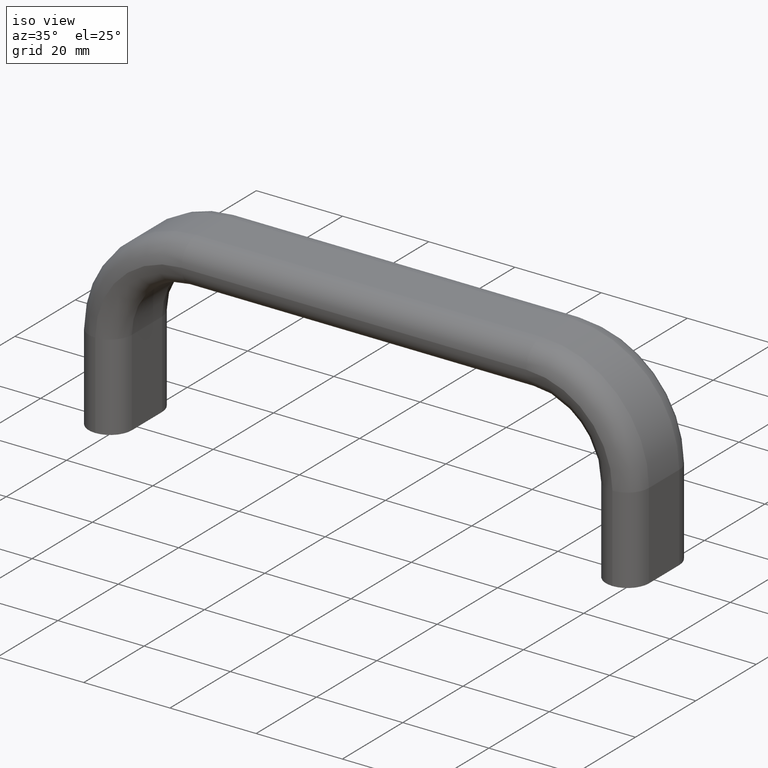
[diagram: clean part render]
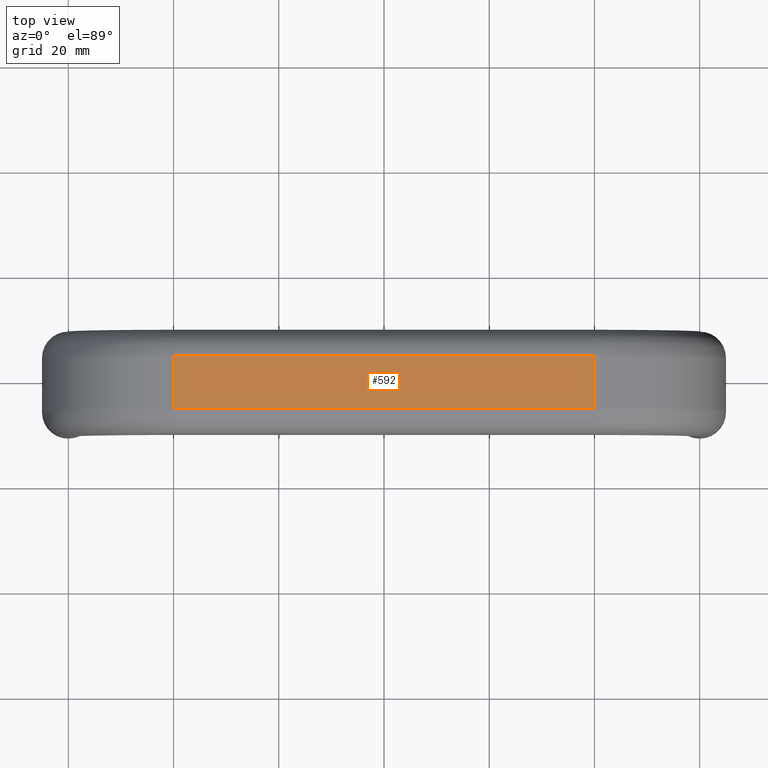
[diagram: tour spotlight — one face highlighted and labeled with its STEP entity id]
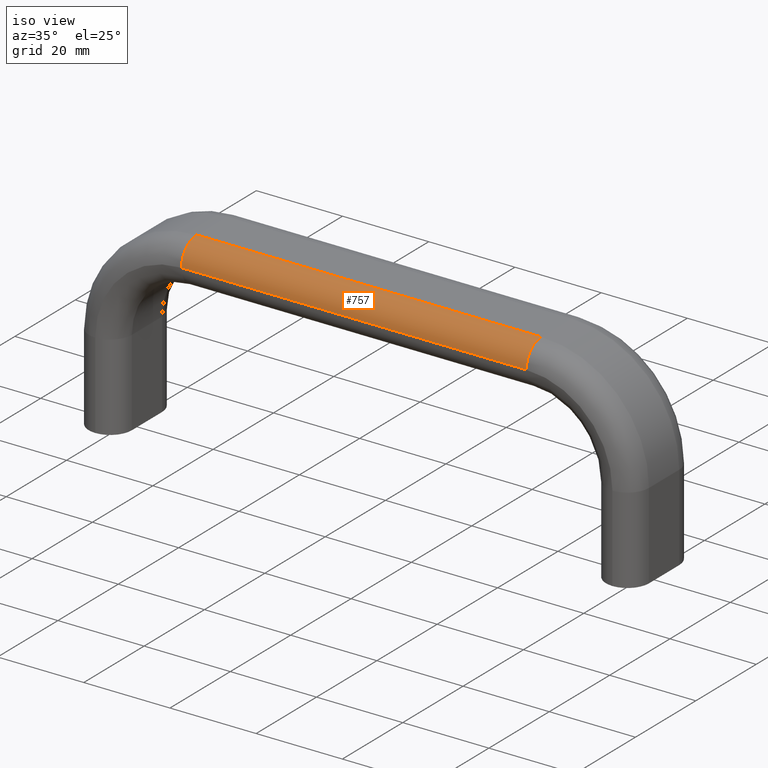
[diagram: tour spotlight — one face highlighted and labeled with its STEP entity id]
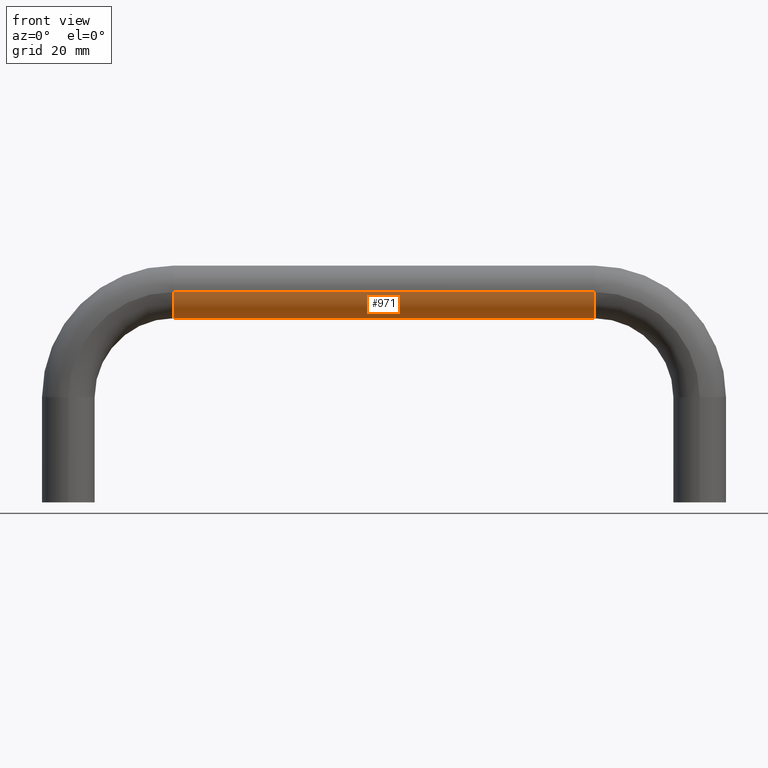
[diagram: tour spotlight — one face highlighted and labeled with its STEP entity id]
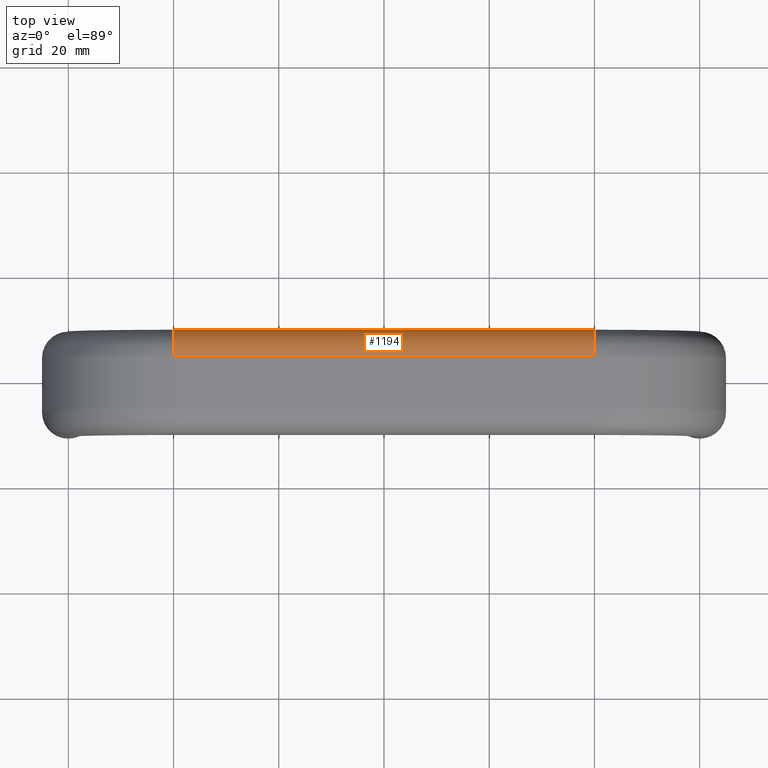
[diagram: tour spotlight — one face highlighted and labeled with its STEP entity id]
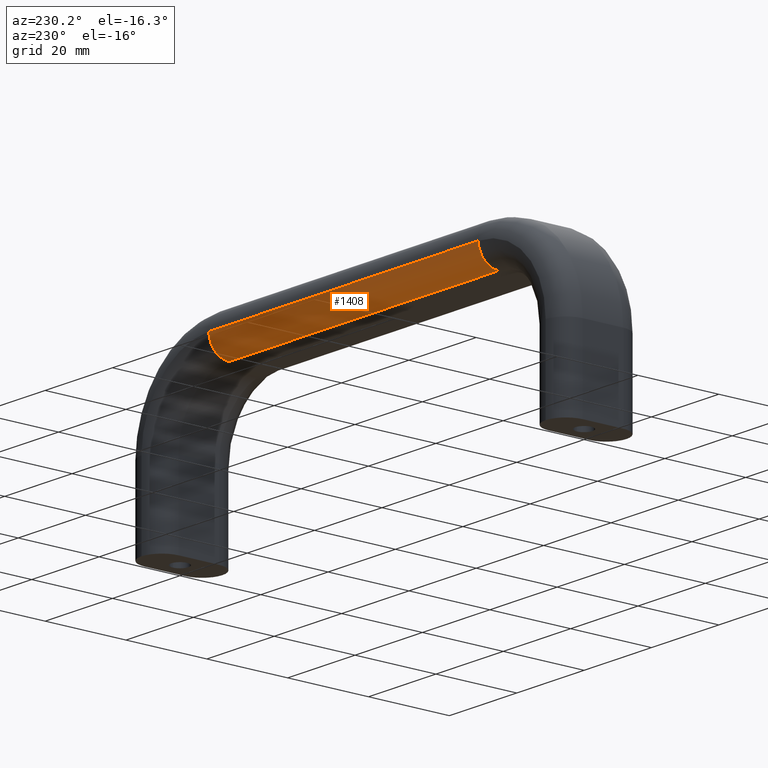
[diagram: tour spotlight — one face highlighted and labeled with its STEP entity id]
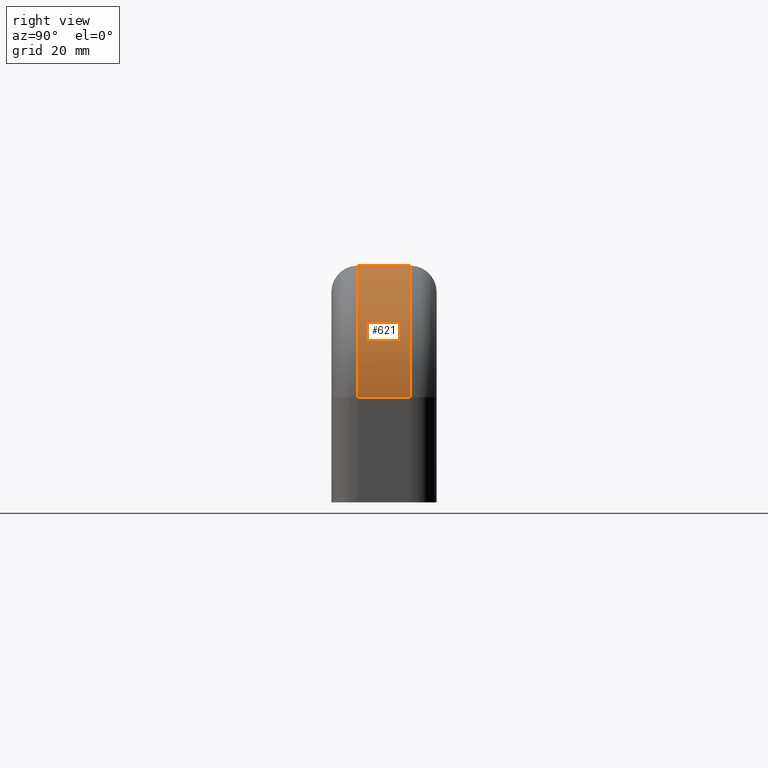
[diagram: tour spotlight — one face highlighted and labeled with its STEP entity id]
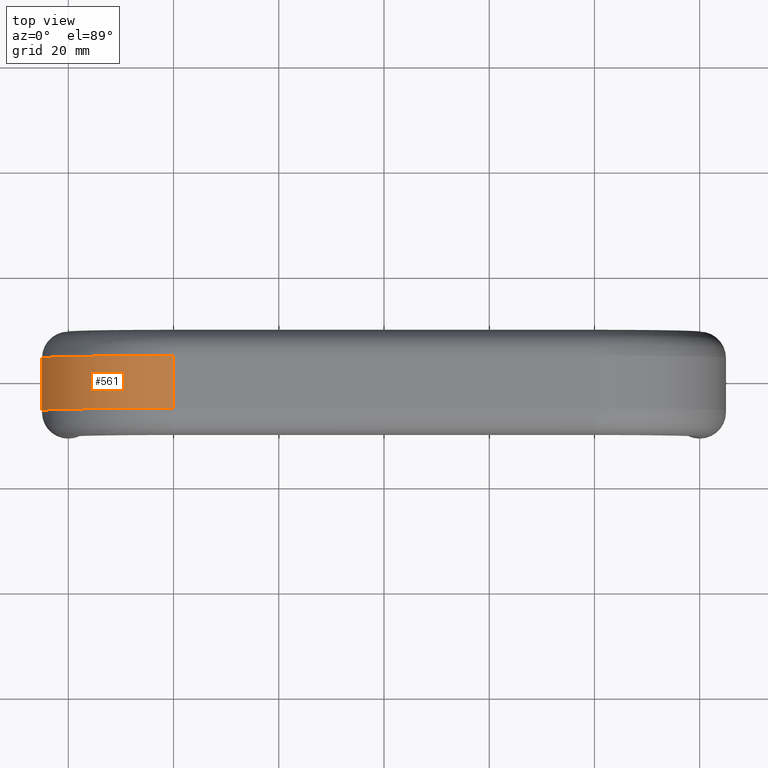
[diagram: tour spotlight — one face highlighted and labeled with its STEP entity id]
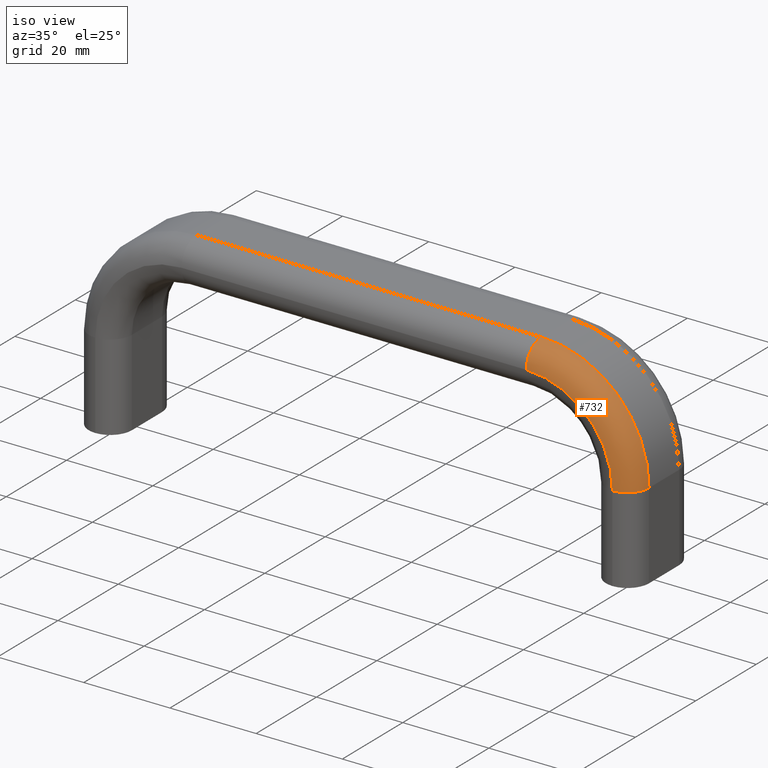
[diagram: tour spotlight — one face highlighted and labeled with its STEP entity id]
A machine part: a face-by-face anatomy tour. The part has 36 B-rep faces; the first image is the clean iso view, then the 8 largest visible faces are spotlighted one at a time (largest first), each with its STEP entity span.

Face 1 — top view, entity #592. In plain terms, the highlighted planar face has unit normal (0, 0, 1).
Definition (entity closure, byte-faithful):
#534=CARTESIAN_POINT('',(20.0,4.500000000000003,45.0));
#535=VERTEX_POINT('',#534);
#536=CARTESIAN_POINT('',(20.0,-5.499999999999997,45.0));
#537=VERTEX_POINT('',#536);
#538=CARTESIAN_POINT('',(20.0,4.500000000000004,45.0));
#539=DIRECTION('',(0.0,-1.0,0.0));
#540=VECTOR('',#539,10.0);
#541=LINE('',#538,#540);
#542=EDGE_CURVE('',#535,#537,#541,.T.);
#562=CARTESIAN_POINT('',(100.0,9.500000000000004,45.0));
#563=DIRECTION('',(0.0,0.0,1.0));
#564=DIRECTION('',(-1.0,0.0,0.0));
#565=AXIS2_PLACEMENT_3D('',#562,#563,#564);
#566=PLANE('',#565);
#567=CARTESIAN_POINT('',(100.0,4.500000000000003,45.0));
#568=VERTEX_POINT('',#567);
#569=CARTESIAN_POINT('',(100.0,-5.499999999999997,45.0));
#570=VERTEX_POINT('',#569);
#571=CARTESIAN_POINT('',(100.0,4.500000000000004,45.0));
#572=DIRECTION('',(0.0,-1.0,0.0));
#573=VECTOR('',#572,10.0);
#574=LINE('',#571,#573);
#575=EDGE_CURVE('',#568,#570,#574,.T.);
#576=ORIENTED_EDGE('',*,*,#575,.F.);
#577=CARTESIAN_POINT('',(100.0,4.500000000000003,45.0));
#578=DIRECTION('',(-1.0,0.0,0.0));
#579=VECTOR('',#578,80.0);
#580=LINE('',#577,#579);
#581=EDGE_CURVE('',#568,#535,#580,.T.);
#582=ORIENTED_EDGE('',*,*,#581,.T.);
#583=ORIENTED_EDGE('',*,*,#542,.T.);
#584=CARTESIAN_POINT('',(100.0,-5.499999999999997,45.0));
#585=DIRECTION('',(-1.0,0.0,0.0));
#586=VECTOR('',#585,80.0);
#587=LINE('',#584,#586);
#588=EDGE_CURVE('',#570,#537,#587,.T.);
#589=ORIENTED_EDGE('',*,*,#588,.F.);
#590=EDGE_LOOP('',(#576,#582,#583,#589));
#591=FACE_OUTER_BOUND('',#590,.T.);
#592=ADVANCED_FACE('',(#591),#566,.T.);

Face 2 — iso view, entity #757. In plain terms, the highlighted cylindrical surface (edge-blend (fillet) strip) has radius 5 mm, axis along (1, 0, 0).
Definition (entity closure, byte-faithful):
#536=CARTESIAN_POINT('',(20.0,-5.499999999999997,45.0));
#537=VERTEX_POINT('',#536);
#569=CARTESIAN_POINT('',(100.0,-5.499999999999997,45.0));
#570=VERTEX_POINT('',#569);
#584=CARTESIAN_POINT('',(100.0,-5.499999999999997,45.0));
#585=DIRECTION('',(-1.0,0.0,0.0));
#586=VECTOR('',#585,80.0);
#587=LINE('',#584,#586);
#588=EDGE_CURVE('',#570,#537,#587,.T.);
#713=CARTESIAN_POINT('',(100.0,-10.499999999999998,40.0));
#714=VERTEX_POINT('',#713);
#715=CARTESIAN_POINT('',(100.0,-5.499999999999997,40.0));
#716=DIRECTION('',(1.0,0.0,0.0));
#717=DIRECTION('',(0.0,6.123234E-017,1.0));
#718=AXIS2_PLACEMENT_3D('',#715,#716,#717);
#719=CIRCLE('',#718,5.0);
#720=EDGE_CURVE('',#570,#714,#719,.T.);
#733=CARTESIAN_POINT('',(100.0,-5.499999999999997,40.0));
#734=DIRECTION('',(1.0,0.0,0.0));
#735=DIRECTION('',(0.0,6.123234E-017,1.0));
#736=AXIS2_PLACEMENT_3D('',#733,#734,#735);
#737=CYLINDRICAL_SURFACE('',#736,5.0);
#738=ORIENTED_EDGE('',*,*,#588,.T.);
#739=CARTESIAN_POINT('',(20.0,-10.499999999999998,40.0));
#740=VERTEX_POINT('',#739);
#741=CARTESIAN_POINT('',(20.0,-5.499999999999997,40.0));
#742=DIRECTION('',(1.0,0.0,0.0));
#743=DIRECTION('',(0.0,6.123234E-017,1.0));
#744=AXIS2_PLACEMENT_3D('',#741,#742,#743);
#745=CIRCLE('',#744,5.0);
#746=EDGE_CURVE('',#537,#740,#745,.T.);
#747=ORIENTED_EDGE('',*,*,#746,.T.);
#748=CARTESIAN_POINT('',(20.0,-10.499999999999998,40.0));
#749=DIRECTION('',(1.0,0.0,0.0));
#750=VECTOR('',#749,80.0);
#751=LINE('',#748,#750);
#752=EDGE_CURVE('',#740,#714,#751,.T.);
#753=ORIENTED_EDGE('',*,*,#752,.T.);
#754=ORIENTED_EDGE('',*,*,#720,.F.);
#755=EDGE_LOOP('',(#738,#747,#753,#754));
#756=FACE_OUTER_BOUND('',#755,.T.);
#757=ADVANCED_FACE('',(#756),#737,.T.);

Face 3 — front view, entity #971. In plain terms, the highlighted cylindrical surface (edge-blend (fillet) strip) has radius 5 mm, axis along (-1, 0, 0).
Definition (entity closure, byte-faithful):
#414=CARTESIAN_POINT('',(100.0,-5.499999999999998,35.0));
#415=VERTEX_POINT('',#414);
#447=CARTESIAN_POINT('',(20.0,-5.499999999999998,35.0));
#448=VERTEX_POINT('',#447);
#462=CARTESIAN_POINT('',(20.0,-5.499999999999998,35.0));
#463=DIRECTION('',(1.0,0.0,0.0));
#464=VECTOR('',#463,80.0);
#465=LINE('',#462,#464);
#466=EDGE_CURVE('',#448,#415,#465,.T.);
#713=CARTESIAN_POINT('',(100.0,-10.499999999999998,40.0));
#714=VERTEX_POINT('',#713);
#739=CARTESIAN_POINT('',(20.0,-10.499999999999998,40.0));
#740=VERTEX_POINT('',#739);
#748=CARTESIAN_POINT('',(20.0,-10.499999999999998,40.0));
#749=DIRECTION('',(1.0,0.0,0.0));
#750=VECTOR('',#749,80.0);
#751=LINE('',#748,#750);
#752=EDGE_CURVE('',#740,#714,#751,.T.);
#942=CARTESIAN_POINT('',(20.0,-5.499999999999997,40.0));
#943=DIRECTION('',(-1.0,0.0,0.0));
#944=DIRECTION('',(0.0,-6.123234E-017,-1.0));
#945=AXIS2_PLACEMENT_3D('',#942,#943,#944);
#946=CIRCLE('',#945,5.0);
#947=EDGE_CURVE('',#448,#740,#946,.T.);
#954=CARTESIAN_POINT('',(20.0,-5.499999999999997,40.0));
#955=DIRECTION('',(-1.0,0.0,0.0));
#956=DIRECTION('',(0.0,-6.123234E-017,-1.0));
#957=AXIS2_PLACEMENT_3D('',#954,#955,#956);
#958=CYLINDRICAL_SURFACE('',#957,5.0);
#959=ORIENTED_EDGE('',*,*,#466,.T.);
#960=CARTESIAN_POINT('',(100.0,-5.499999999999997,40.0));
#961=DIRECTION('',(-1.0,0.0,0.0));
#962=DIRECTION('',(0.0,-6.123234E-017,-1.0));
#963=AXIS2_PLACEMENT_3D('',#960,#961,#962);
#964=CIRCLE('',#963,5.0);
#965=EDGE_CURVE('',#415,#714,#964,.T.);
#966=ORIENTED_EDGE('',*,*,#965,.T.);
#967=ORIENTED_EDGE('',*,*,#752,.F.);
#968=ORIENTED_EDGE('',*,*,#947,.F.);
#969=EDGE_LOOP('',(#959,#966,#967,#968));
#970=FACE_OUTER_BOUND('',#969,.T.);
#971=ADVANCED_FACE('',(#970),#958,.T.);

Face 4 — top view, entity #1194. In plain terms, the highlighted cylindrical surface (edge-blend (fillet) strip) has radius 5 mm, axis along (-1, 0, 0).
Definition (entity closure, byte-faithful):
#534=CARTESIAN_POINT('',(20.0,4.500000000000003,45.0));
#535=VERTEX_POINT('',#534);
#567=CARTESIAN_POINT('',(100.0,4.500000000000003,45.0));
#568=VERTEX_POINT('',#567);
#577=CARTESIAN_POINT('',(100.0,4.500000000000003,45.0));
#578=DIRECTION('',(-1.0,0.0,0.0));
#579=VECTOR('',#578,80.0);
#580=LINE('',#577,#579);
#581=EDGE_CURVE('',#568,#535,#580,.T.);
#1150=CARTESIAN_POINT('',(100.0,9.500000000000002,40.0));
#1151=VERTEX_POINT('',#1150);
#1159=CARTESIAN_POINT('',(100.0,4.500000000000003,40.0));
#1160=DIRECTION('',(-1.0,0.0,0.0));
#1161=DIRECTION('',(0.0,6.123234E-017,1.0));
#1162=AXIS2_PLACEMENT_3D('',#1159,#1160,#1161);
#1163=CIRCLE('',#1162,5.0);
#1164=EDGE_CURVE('',#568,#1151,#1163,.T.);
#1170=CARTESIAN_POINT('',(100.0,4.500000000000003,40.0));
#1171=DIRECTION('',(-1.0,0.0,0.0));
#1172=DIRECTION('',(0.0,6.123234E-017,1.0));
#1173=AXIS2_PLACEMENT_3D('',#1170,#1171,#1172);
#1174=CYLINDRICAL_SURFACE('',#1173,5.0);
#1175=ORIENTED_EDGE('',*,*,#1164,.T.);
#1176=CARTESIAN_POINT('',(20.0,9.500000000000002,40.0));
#1177=VERTEX_POINT('',#1176);
#1178=CARTESIAN_POINT('',(20.0,9.500000000000002,40.0));
#1179=DIRECTION('',(1.0,0.0,0.0));
#1180=VECTOR('',#1179,80.0);
#1181=LINE('',#1178,#1180);
#1182=EDGE_CURVE('',#1177,#1151,#1181,.T.);
#1183=ORIENTED_EDGE('',*,*,#1182,.F.);
#1184=CARTESIAN_POINT('',(20.0,4.500000000000003,40.0));
#1185=DIRECTION('',(-1.0,0.0,0.0));
#1186=DIRECTION('',(0.0,6.123234E-017,1.0));
#1187=AXIS2_PLACEMENT_3D('',#1184,#1185,#1186);
#1188=CIRCLE('',#1187,5.0);
#1189=EDGE_CURVE('',#535,#1177,#1188,.T.);
#1190=ORIENTED_EDGE('',*,*,#1189,.F.);
#1191=ORIENTED_EDGE('',*,*,#581,.F.);
#1192=EDGE_LOOP('',(#1175,#1183,#1190,#1191));
#1193=FACE_OUTER_BOUND('',#1192,.T.);
#1194=ADVANCED_FACE('',(#1193),#1174,.T.);

Face 5 — auxiliary view, entity #1408. In plain terms, the highlighted cylindrical surface (edge-blend (fillet) strip) has radius 5 mm, axis along (1, 0, 0).
Definition (entity closure, byte-faithful):
#412=CARTESIAN_POINT('',(100.0,4.500000000000002,35.0));
#413=VERTEX_POINT('',#412);
#445=CARTESIAN_POINT('',(20.0,4.500000000000002,35.0));
#446=VERTEX_POINT('',#445);
#455=CARTESIAN_POINT('',(20.0,4.500000000000002,35.0));
#456=DIRECTION('',(1.0,0.0,0.0));
#457=VECTOR('',#456,80.0);
#458=LINE('',#455,#457);
#459=EDGE_CURVE('',#446,#413,#458,.T.);
#1150=CARTESIAN_POINT('',(100.0,9.500000000000002,40.0));
#1151=VERTEX_POINT('',#1150);
#1176=CARTESIAN_POINT('',(20.0,9.500000000000002,40.0));
#1177=VERTEX_POINT('',#1176);
#1178=CARTESIAN_POINT('',(20.0,9.500000000000002,40.0));
#1179=DIRECTION('',(1.0,0.0,0.0));
#1180=VECTOR('',#1179,80.0);
#1181=LINE('',#1178,#1180);
#1182=EDGE_CURVE('',#1177,#1151,#1181,.T.);
#1380=CARTESIAN_POINT('',(20.0,4.500000000000003,40.0));
#1381=DIRECTION('',(1.0,0.0,0.0));
#1382=DIRECTION('',(0.0,-6.123234E-017,-1.0));
#1383=AXIS2_PLACEMENT_3D('',#1380,#1381,#1382);
#1384=CIRCLE('',#1383,5.0);
#1385=EDGE_CURVE('',#446,#1177,#1384,.T.);
#1391=CARTESIAN_POINT('',(20.0,4.500000000000003,40.0));
#1392=DIRECTION('',(1.0,0.0,0.0));
#1393=DIRECTION('',(0.0,-6.123234E-017,-1.0));
#1394=AXIS2_PLACEMENT_3D('',#1391,#1392,#1393);
#1395=CYLINDRICAL_SURFACE('',#1394,5.0);
#1396=ORIENTED_EDGE('',*,*,#1385,.T.);
#1397=ORIENTED_EDGE('',*,*,#1182,.T.);
#1398=CARTESIAN_POINT('',(100.0,4.500000000000003,40.0));
#1399=DIRECTION('',(1.0,0.0,0.0));
#1400=DIRECTION('',(0.0,-6.123234E-017,-1.0));
#1401=AXIS2_PLACEMENT_3D('',#1398,#1399,#1400);
#1402=CIRCLE('',#1401,5.0);
#1403=EDGE_CURVE('',#413,#1151,#1402,.T.);
#1404=ORIENTED_EDGE('',*,*,#1403,.F.);
#1405=ORIENTED_EDGE('',*,*,#459,.F.);
#1406=EDGE_LOOP('',(#1396,#1397,#1404,#1405));
#1407=FACE_OUTER_BOUND('',#1406,.T.);
#1408=ADVANCED_FACE('',(#1407),#1395,.T.);

Face 6 — right view, entity #621. In plain terms, the highlighted cylindrical surface (partial cylindrical patch) has radius 25 mm, axis along (0, -1, 0).
Definition (entity closure, byte-faithful):
#258=CARTESIAN_POINT('',(125.0,4.500000000000001,20.0));
#259=VERTEX_POINT('',#258);
#370=CARTESIAN_POINT('',(125.0,-5.499999999999999,20.0));
#371=VERTEX_POINT('',#370);
#567=CARTESIAN_POINT('',(100.0,4.500000000000003,45.0));
#568=VERTEX_POINT('',#567);
#569=CARTESIAN_POINT('',(100.0,-5.499999999999997,45.0));
#570=VERTEX_POINT('',#569);
#571=CARTESIAN_POINT('',(100.0,4.500000000000004,45.0));
#572=DIRECTION('',(0.0,-1.0,0.0));
#573=VECTOR('',#572,10.0);
#574=LINE('',#571,#573);
#575=EDGE_CURVE('',#568,#570,#574,.T.);
#593=CARTESIAN_POINT('',(100.0,9.500000000000002,20.0));
#594=DIRECTION('',(0.0,-1.0,6.123234E-017));
#595=DIRECTION('',(1.0,0.0,0.0));
#596=AXIS2_PLACEMENT_3D('',#593,#594,#595);
#597=CYLINDRICAL_SURFACE('',#596,25.0);
#598=CARTESIAN_POINT('',(125.0,4.500000000000002,20.0));
#599=DIRECTION('',(0.0,-1.0,0.0));
#600=VECTOR('',#599,10.0);
#601=LINE('',#598,#600);
#602=EDGE_CURVE('',#259,#371,#601,.T.);
#603=ORIENTED_EDGE('',*,*,#602,.F.);
#604=CARTESIAN_POINT('',(100.0,4.500000000000001,20.0));
#605=DIRECTION('',(0.0,-1.0,6.123234E-017));
#606=DIRECTION('',(1.0,0.0,0.0));
#607=AXIS2_PLACEMENT_3D('',#604,#605,#606);
#608=CIRCLE('',#607,25.0);
#609=EDGE_CURVE('',#259,#568,#608,.T.);
#610=ORIENTED_EDGE('',*,*,#609,.T.);
#611=ORIENTED_EDGE('',*,*,#575,.T.);
#612=CARTESIAN_POINT('',(100.0,-5.499999999999999,20.0));
#613=DIRECTION('',(0.0,-1.0,6.123234E-017));
#614=DIRECTION('',(1.0,0.0,0.0));
#615=AXIS2_PLACEMENT_3D('',#612,#613,#614);
#616=CIRCLE('',#615,25.0);
#617=EDGE_CURVE('',#371,#570,#616,.T.);
#618=ORIENTED_EDGE('',*,*,#617,.F.);
#619=EDGE_LOOP('',(#603,#610,#611,#618));
#620=FACE_OUTER_BOUND('',#619,.T.);
#621=ADVANCED_FACE('',(#620),#597,.T.);

Face 7 — top view, entity #561. In plain terms, the highlighted cylindrical surface (partial cylindrical patch) has radius 25 mm, axis along (0, -1, 0).
Definition (entity closure, byte-faithful):
#231=CARTESIAN_POINT('',(-5.0,4.500000000000001,20.0));
#232=VERTEX_POINT('',#231);
#345=CARTESIAN_POINT('',(-5.0,-5.499999999999999,20.0));
#346=VERTEX_POINT('',#345);
#517=CARTESIAN_POINT('',(-5.0,4.500000000000002,20.0));
#518=DIRECTION('',(0.0,-1.0,0.0));
#519=VECTOR('',#518,10.0);
#520=LINE('',#517,#519);
#521=EDGE_CURVE('',#232,#346,#520,.T.);
#529=CARTESIAN_POINT('',(20.0,9.500000000000002,20.0));
#530=DIRECTION('',(0.0,-1.0,6.123234E-017));
#531=DIRECTION('',(1.0,0.0,0.0));
#532=AXIS2_PLACEMENT_3D('',#529,#530,#531);
#533=CYLINDRICAL_SURFACE('',#532,25.0);
#534=CARTESIAN_POINT('',(20.0,4.500000000000003,45.0));
#535=VERTEX_POINT('',#534);
#536=CARTESIAN_POINT('',(20.0,-5.499999999999997,45.0));
#537=VERTEX_POINT('',#536);
#538=CARTESIAN_POINT('',(20.0,4.500000000000004,45.0));
#539=DIRECTION('',(0.0,-1.0,0.0));
#540=VECTOR('',#539,10.0);
#541=LINE('',#538,#540);
#542=EDGE_CURVE('',#535,#537,#541,.T.);
#543=ORIENTED_EDGE('',*,*,#542,.F.);
#544=CARTESIAN_POINT('',(20.0,4.500000000000001,20.0));
#545=DIRECTION('',(0.0,-1.0,6.123234E-017));
#546=DIRECTION('',(1.0,0.0,0.0));
#547=AXIS2_PLACEMENT_3D('',#544,#545,#546);
#548=CIRCLE('',#547,25.0);
#549=EDGE_CURVE('',#535,#232,#548,.T.);
#550=ORIENTED_EDGE('',*,*,#549,.T.);
#551=ORIENTED_EDGE('',*,*,#521,.T.);
#552=CARTESIAN_POINT('',(20.0,-5.499999999999999,20.0));
#553=DIRECTION('',(0.0,-1.0,6.123234E-017));
#554=DIRECTION('',(1.0,0.0,0.0));
#555=AXIS2_PLACEMENT_3D('',#552,#553,#554);
#556=CIRCLE('',#555,25.0);
#557=EDGE_CURVE('',#537,#346,#556,.T.);
#558=ORIENTED_EDGE('',*,*,#557,.F.);
#559=EDGE_LOOP('',(#543,#550,#551,#558));
#560=FACE_OUTER_BOUND('',#559,.T.);
#561=ADVANCED_FACE('',(#560),#533,.T.);

Face 8 — iso view, entity #732. In plain terms, the highlighted face is a freeform B-spline surface patch.
Definition (entity closure, byte-faithful):
#290=CARTESIAN_POINT('',(120.0,-10.499999999999998,20.0));
#291=VERTEX_POINT('',#290);
#370=CARTESIAN_POINT('',(125.0,-5.499999999999999,20.0));
#371=VERTEX_POINT('',#370);
#378=CARTESIAN_POINT('',(120.0,-5.499999999999999,20.0));
#379=DIRECTION('',(0.0,-6.123234E-017,-1.0));
#380=DIRECTION('',(1.0,0.0,0.0));
#381=AXIS2_PLACEMENT_3D('',#378,#379,#380);
#382=CIRCLE('',#381,5.0);
#383=EDGE_CURVE('',#371,#291,#382,.T.);
#569=CARTESIAN_POINT('',(100.0,-5.499999999999997,45.0));
#570=VERTEX_POINT('',#569);
#612=CARTESIAN_POINT('',(100.0,-5.499999999999999,20.0));
#613=DIRECTION('',(0.0,-1.0,6.123234E-017));
#614=DIRECTION('',(1.0,0.0,0.0));
#615=AXIS2_PLACEMENT_3D('',#612,#613,#614);
#616=CIRCLE('',#615,25.0);
#617=EDGE_CURVE('',#371,#570,#616,.T.);
#634=CARTESIAN_POINT('',(125.0,-5.499999999999999,20.0));
#635=CARTESIAN_POINT('',(125.0,-6.150301073387094,20.0));
#636=CARTESIAN_POINT('',(124.739806119421100,-7.465139086716375,20.0));
#637=CARTESIAN_POINT('',(123.627064557364720,-9.127064557364733,20.0));
#638=CARTESIAN_POINT('',(121.965139086716390,-10.239806119421102,20.0));
#639=CARTESIAN_POINT('',(120.650301073387100,-10.499999999999998,20.0));
#640=CARTESIAN_POINT('',(120.0,-10.499999999999998,20.0));
#641=CARTESIAN_POINT('',(125.0,-5.499999999999999,21.633619005492676));
#642=CARTESIAN_POINT('',(125.0,-6.150301073387093,21.633619005492676));
#643=CARTESIAN_POINT('',(124.739806119421080,-7.465139086716373,21.616616698755614));
#644=CARTESIAN_POINT('',(123.627064557364720,-9.127064557364728,21.543904868196538));
#645=CARTESIAN_POINT('',(121.965139086716390,-10.239806119421104,21.435306746814000));
#646=CARTESIAN_POINT('',(120.650301073387100,-10.499999999999996,21.349388972105238));
#647=CARTESIAN_POINT('',(119.999999999999970,-10.499999999999998,21.306895204394142));
#648=CARTESIAN_POINT('',(124.677690791095700,-5.499999999999997,24.909910774615561));
#649=CARTESIAN_POINT('',(124.677690791095700,-6.150301073387087,24.909910774615561));
#650=CARTESIAN_POINT('',(124.420851425869190,-7.465139086716365,24.858809625105827));
#651=CARTESIAN_POINT('',(123.322455737916040,-9.127064557364717,24.640271153709705));
#652=CARTESIAN_POINT('',(121.681956422615870,-10.239806119421099,24.313874922711932));
#653=CARTESIAN_POINT('',(120.384069785283090,-10.499999999999989,24.055645429571147));
#654=CARTESIAN_POINT('',(119.742152632876550,-10.499999999999993,23.927928619692448));
#655=CARTESIAN_POINT('',(123.245874291649490,-5.500000000000000,29.628432083025714));
#656=CARTESIAN_POINT('',(123.245874291649490,-6.150301073387095,29.628432083025714));
#657=CARTESIAN_POINT('',(123.003936922073760,-7.465139086716384,29.528221718722804));
#658=CARTESIAN_POINT('',(121.969270903247580,-9.127064557364740,29.099663456474012));
#659=CARTESIAN_POINT('',(120.423954480336180,-10.239806119421107,28.459593995626488));
#660=CARTESIAN_POINT('',(119.201372113466850,-10.500000000000004,27.953200855165633));
#661=CARTESIAN_POINT('',(118.596699433319590,-10.500000000000004,27.702745666420576));
#662=CARTESIAN_POINT('',(120.920741918999450,-5.499999999999996,33.978875748045049));
#663=CARTESIAN_POINT('',(120.920741918999450,-6.150301073387091,33.978875748045049));
#664=CARTESIAN_POINT('',(120.703003958019650,-7.465139086716370,33.833387030964495));
#665=CARTESIAN_POINT('',(119.771828796326670,-9.127064557364729,33.211191989537610));
#666=CARTESIAN_POINT('',(118.381080241924880,-10.239806119421093,32.281918003269446));
#667=CARTESIAN_POINT('',(117.280784772238750,-10.499999999999996,31.546719714583986));
#668=CARTESIAN_POINT('',(116.736593535199570,-10.499999999999996,31.183100598436038));
#669=CARTESIAN_POINT('',(117.791599877734430,-5.500000000000000,37.791599877734406));
#670=CARTESIAN_POINT('',(117.791599877734430,-6.150301073387094,37.791599877734406));
#671=CARTESIAN_POINT('',(117.606429261178650,-7.465139086716373,37.606429261178604));
#672=CARTESIAN_POINT('',(116.814531155601320,-9.127064557364735,36.814531155601323));
#673=CARTESIAN_POINT('',(115.631798635585700,-10.239806119421104,35.631798635585682));
#674=CARTESIAN_POINT('',(114.696075762098120,-10.500000000000000,34.696075762098090));
#675=CARTESIAN_POINT('',(114.233279902187520,-10.500000000000000,34.233279902187519));
#676=CARTESIAN_POINT('',(113.978875748045060,-5.499999999999997,40.920741918999482));
#677=CARTESIAN_POINT('',(113.978875748045060,-6.150301073387092,40.920741918999482));
#678=CARTESIAN_POINT('',(113.833387030964470,-7.465139086716379,40.703003958019728));
#679=CARTESIAN_POINT('',(113.211191989537610,-9.127064557364731,39.771828796326687));
#680=CARTESIAN_POINT('',(112.281918003269450,-10.239806119421097,38.381080241924856));
#681=CARTESIAN_POINT('',(111.546719714583990,-10.499999999999996,37.280784772238775));
#682=CARTESIAN_POINT('',(111.183100598436030,-10.499999999999996,36.736593535199582));
#683=CARTESIAN_POINT('',(109.628432083025730,-5.499999999999998,43.245874291649464));
#684=CARTESIAN_POINT('',(109.628432083025730,-6.150301073387094,43.245874291649464));
#685=CARTESIAN_POINT('',(109.528221718722850,-7.465139086716372,43.003936922073706));
#686=CARTESIAN_POINT('',(109.099663456474020,-9.127064557364735,41.969270903247484));
#687=CARTESIAN_POINT('',(108.459593995626480,-10.239806119421107,40.423954480336199));
#688=CARTESIAN_POINT('',(107.953200855165630,-10.499999999999998,39.201372113466810));
#689=CARTESIAN_POINT('',(107.702745666420580,-10.499999999999998,38.596699433319571));
#690=CARTESIAN_POINT('',(104.909910774615600,-5.499999999999998,44.677690791095742));
#691=CARTESIAN_POINT('',(104.909910774615600,-6.150301073387093,44.677690791095742));
#692=CARTESIAN_POINT('',(104.858809625105830,-7.465139086716380,44.420851425869316));
#693=CARTESIAN_POINT('',(104.640271153709700,-9.127064557364738,43.322455737916179));
#694=CARTESIAN_POINT('',(104.313874922711970,-10.239806119421104,41.681956422615905));
#695=CARTESIAN_POINT('',(104.055645429571160,-10.499999999999996,40.384069785283160));
#696=CARTESIAN_POINT('',(103.927928619692470,-10.499999999999996,39.742152632876596));
#697=CARTESIAN_POINT('',(101.633619005492680,-5.499999999999997,45.0));
#698=CARTESIAN_POINT('',(101.633619005492680,-6.150301073387092,45.0));
#699=CARTESIAN_POINT('',(101.616616698755610,-7.465139086716376,44.739806119421097));
#700=CARTESIAN_POINT('',(101.543904868196530,-9.127064557364735,43.627064557364712));
#701=CARTESIAN_POINT('',(101.435306746814010,-10.239806119421102,41.965139086716384));
#702=CARTESIAN_POINT('',(101.349388972105230,-10.499999999999996,40.650301073387119));
#703=CARTESIAN_POINT('',(101.306895204394140,-10.499999999999996,39.999999999999986));
#704=CARTESIAN_POINT('',(100.0,-5.499999999999997,45.0));
#705=CARTESIAN_POINT('',(100.0,-6.150301073387092,45.0));
#706=CARTESIAN_POINT('',(99.999999999999986,-7.465139086716373,44.739806119421111));
#707=CARTESIAN_POINT('',(100.0,-9.127064557364733,43.627064557364733));
#708=CARTESIAN_POINT('',(100.0,-10.239806119421100,41.965139086716384));
#709=CARTESIAN_POINT('',(100.0,-10.499999999999996,40.650301073387098));
#710=CARTESIAN_POINT('',(100.0,-10.499999999999996,40.0));
#711=B_SPLINE_SURFACE_WITH_KNOTS('',3,3,((#634,#641,#648,#655,#662,#669,#676,#683,#690,#697,#704),(#635,#642,#649,#656,#663,#670,#677,#684,#691,#698,#705),(#636,#643,#650,#657,#664,#671,#678,#685,#692,#699,#706),(#637,#644,#651,#658,#665,#672,#679,#686,#693,#700,#707),(#638,#645,#652,#659,#666,#673,#680,#687,#694,#701,#708),(#639,#646,#653,#660,#667,#674,#681,#688,#695,#702,#709),(#640,#647,#654,#661,#668,#675,#682,#689,#696,#703,#710)),.UNSPECIFIED.,.F.,.F.,.U.,(4,1,1,1,4),(4,1,1,1,1,1,1,1,4),(0.0,1.950903220161283,3.901806440322566,5.852709660483849,7.803612880645131),(0.0,4.511468193996026,9.022936387992051,13.534404581988076,18.045872775984105,22.557340969980132,27.068809163976152,31.580277357972182,36.091745551968202),.UNSPECIFIED.);
#712=ORIENTED_EDGE('',*,*,#617,.T.);
#713=CARTESIAN_POINT('',(100.0,-10.499999999999998,40.0));
#714=VERTEX_POINT('',#713);
#715=CARTESIAN_POINT('',(100.0,-5.499999999999997,40.0));
#716=DIRECTION('',(1.0,0.0,0.0));
#717=DIRECTION('',(0.0,6.123234E-017,1.0));
#718=AXIS2_PLACEMENT_3D('',#715,#716,#717);
#719=CIRCLE('',#718,5.0);
#720=EDGE_CURVE('',#570,#714,#719,.T.);
#721=ORIENTED_EDGE('',*,*,#720,.T.);
#722=CARTESIAN_POINT('',(100.0,-10.499999999999998,20.0));
#723=DIRECTION('',(0.0,1.0,-6.123234E-017));
#724=DIRECTION('',(1.0,0.0,0.0));
#725=AXIS2_PLACEMENT_3D('',#722,#723,#724);
#726=CIRCLE('',#725,20.0);
#727=EDGE_CURVE('',#714,#291,#726,.T.);
#728=ORIENTED_EDGE('',*,*,#727,.T.);
#729=ORIENTED_EDGE('',*,*,#383,.F.);
#730=EDGE_LOOP('',(#712,#721,#728,#729));
#731=FACE_OUTER_BOUND('',#730,.T.);
#732=ADVANCED_FACE('',(#731),#711,.F.);